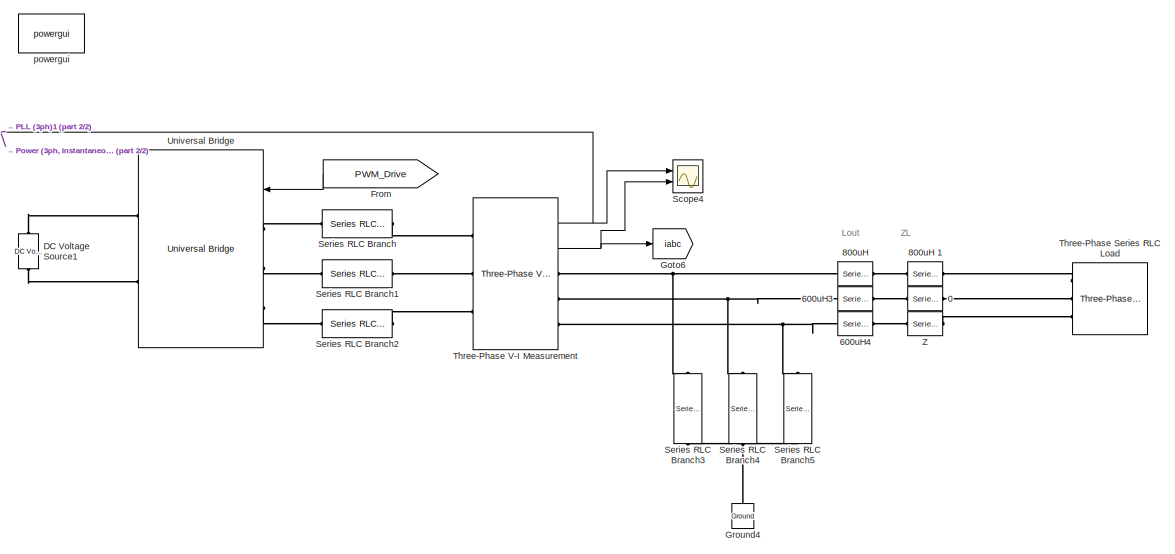
[diagram: root canvas - part 1/2, full width, top band]
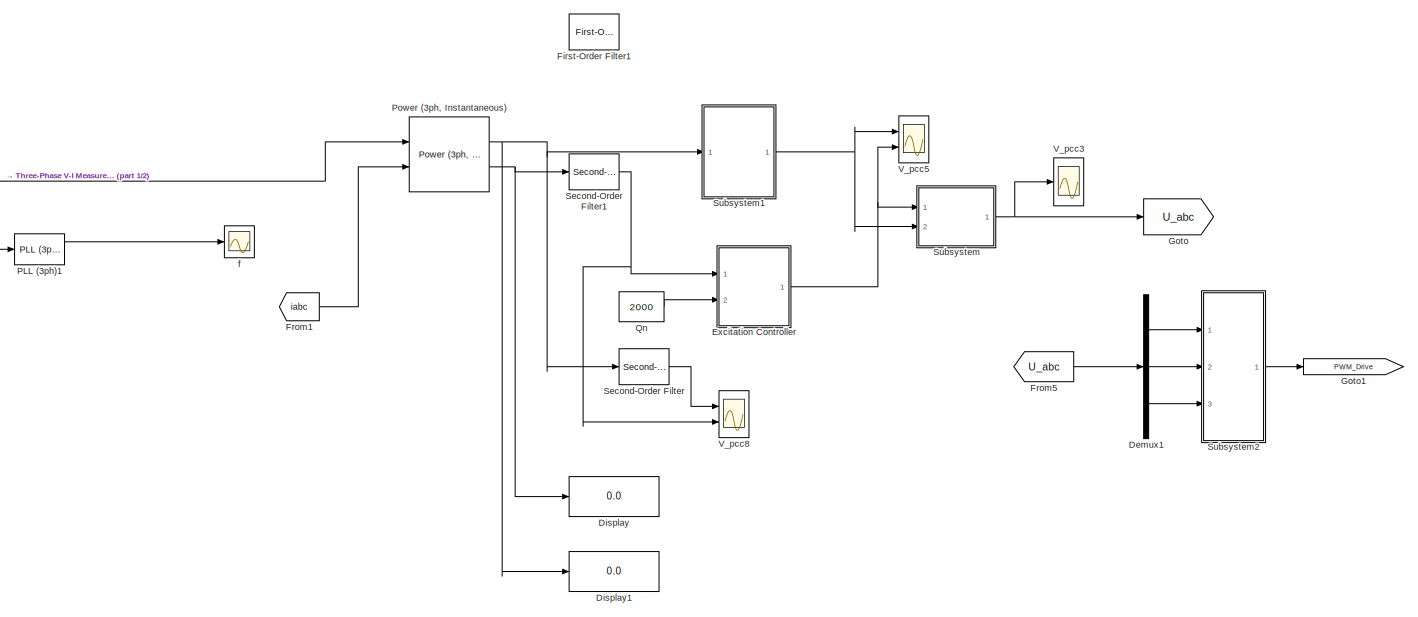
[diagram: root canvas - part 2/2, full width, bottom band]
MODEL slx_7855876d6123
KIND model
CONFIG AbsTol = auto
CONFIG FixedStep = auto
CONFIG InitFcn = fs=1/10e3;\ngTs=1/10e3;\n
CONFIG MaxStep = 1e-4
CONFIG MinStep = 1e-7
CONFIG RelTol = 1e-7
CONFIG SampleTimeConstraint = Unconstrained
CONFIG Solver = ode23tb
CONFIG SolverMode = Auto
CONFIG SolverName = ode23tb
CONFIG StartTime = 0.0
CONFIG StopTime = 2
BLOCK [Reference] 0  REF=powerlib/Elements/Series RLC Branch
  BranchType = R
  Capacitance = []
  Inductance = 6e-3
  InitialCurrent = 0
  InitialVoltage = 0
  LConnTagsString = __new0
  Measurements = None
  Ports = [0, 0, 0, 0, 0, 1, 1]
  RConnTagsString = __new0
  Resistance = 0.077+0.017i
  SetiL0 = off
  Setx0 = off
  SourceBlock = powerlib/Elements/Series RLC Branch
  SourceType = Series RLC Branch
BLOCK [Reference] 600uH3  REF=powerlib/Elements/Series RLC Branch
  BranchType = L
  Capacitance = []
  Inductance = 6e-3
  InitialCurrent = 0
  InitialVoltage = 0
  LConnTagsString = __new0
  Measurements = None
  Ports = [0, 0, 0, 0, 0, 1, 1]
  RConnTagsString = __new0
  Resistance = 0.001
  SetiL0 = off
  Setx0 = off
  SourceBlock = powerlib/Elements/Series RLC Branch
  SourceType = Series RLC Branch
BLOCK [Reference] 600uH4  REF=powerlib/Elements/Series RLC Branch
  BranchType = L
  Capacitance = []
  Inductance = 6e-3
  InitialCurrent = 0
  InitialVoltage = 0
  LConnTagsString = __new0
  Measurements = None
  Ports = [0, 0, 0, 0, 0, 1, 1]
  RConnTagsString = __new0
  Resistance = 0.001
  SetiL0 = off
  Setx0 = off
  SourceBlock = powerlib/Elements/Series RLC Branch
  SourceType = Series RLC Branch
BLOCK [Reference] 800uH   REF=powerlib/Elements/Series RLC Branch
  BranchType = L
  Capacitance = []
  Inductance = 6e-3
  InitialCurrent = 0
  InitialVoltage = 0
  LConnTagsString = __new0
  Measurements = None
  Ports = [0, 0, 0, 0, 0, 1, 1]
  RConnTagsString = __new0
  Resistance = 0.001
  SetiL0 = off
  Setx0 = off
  SourceBlock = powerlib/Elements/Series RLC Branch
  SourceType = Series RLC Branch
BLOCK [Reference] 800uH 1  REF=powerlib/Elements/Series RLC Branch
  BranchType = R
  Capacitance = []
  Inductance = 6e-3
  InitialCurrent = 0
  InitialVoltage = 0
  LConnTagsString = __new0
  Measurements = None
  Ports = [0, 0, 0, 0, 0, 1, 1]
  RConnTagsString = __new0
  Resistance = 0.077+0.017i
  SetiL0 = off
  Setx0 = off
  SourceBlock = powerlib/Elements/Series RLC Branch
  SourceType = Series RLC Branch
BLOCK [Reference] DC Voltage Source1  REF=powerlib/Electrical
Sources/DC Voltage Source
  Amplitude = 1000
  Measurements = None
  Ports = [0, 0, 0, 0, 0, 1, 1]
  SourceBlock = powerlib/Electrical\nSources/DC Voltage Source
  SourceType = DC Voltage Source
BLOCK [Demux] Demux1
  DisplayOption = bar
  Outputs = 3
  Ports = [1, 3]
BLOCK [Display] Display
  Decimation = 1
  Ports = [1]
BLOCK [Display] Display1
  Decimation = 1
  Ports = [1]
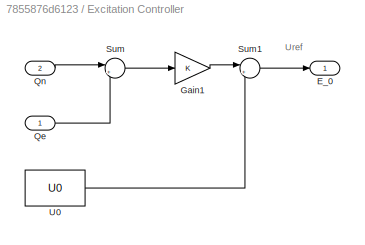
BLOCK [SubSystem] Excitation Controller
  Ports = [2, 1]
  RequestExecContextInheritance = off
BLOCK [Outport] Excitation Controller/E_0
  IconDisplay = Port number
BLOCK [Gain] Excitation Controller/Gain1
  Gain = K
BLOCK [Inport] Excitation Controller/Qe
  IconDisplay = Port number
BLOCK [Inport] Excitation Controller/Qn
  IconDisplay = Port number
  Port = 2
BLOCK [Sum] Excitation Controller/Sum
  IconShape = round
  InputSameDT = off
  Inputs = |+-
  OutDataTypeStr = Inherit: Inherit via internal rule
  Ports = [2, 1]
  SaturateOnIntegerOverflow = off
BLOCK [Sum] Excitation Controller/Sum1
  IconShape = round
  InputSameDT = off
  Inputs = |++
  OutDataTypeStr = Inherit: Inherit via internal rule
  Ports = [2, 1]
  SaturateOnIntegerOverflow = off
BLOCK [Constant] Excitation Controller/U0
  Value = U0
  VectorParams1D = off
BLOCK [Reference] First-Order Filter1  REF=powerlib_meascontrol/Filters/First-Order
Filter
  Commented = on
  FilterType = Lowpass
  FreqRange = [0,  200,  1]
  Initialize = on
  PlotResponse = off
  Ports = [1, 1]
  SourceBlock = powerlib_meascontrol/Filters/First-Order\nFilter
  SourceType = First-Order Filter
  Tc = 10e-3
  Ts = 0
  Vac_Init = [0, 0, 52]
  Vdc_Init = 0
BLOCK [From] From
  GotoTag = PWM_Drive
BLOCK [From] From1
  GotoTag = iabc
BLOCK [From] From5
  GotoTag = U_abc
BLOCK [Goto] Goto
  GotoTag = U_abc
BLOCK [Goto] Goto1
  GotoTag = PWM_Drive
BLOCK [Goto] Goto6
  GotoTag = iabc
BLOCK [Reference] Ground4  REF=powerlib/Elements/Ground
  LConnTagsString = a
  Ports = [0, 0, 0, 0, 0, 1]
  SourceBlock = powerlib/Elements/Ground
  SourceType = Ground
BLOCK [Reference] PLL (3ph)1  REF=powerlib_meascontrol/PLL/PLL
(3ph)
  AGC = on
  FilterCutOffFreq = 25
  Fmin = 45
  MaxRateChangeFreq = 12
  ParK = [180, 3200, 1]
  Par_Init = [0, 50]
  Ports = [1, 2]
  SourceBlock = powerlib_meascontrol/PLL/PLL\n(3ph)
  SourceType = PLL (3ph)
  TcD = 1e-4
  Ts = 0
BLOCK [Reference] Power (3ph, Instantaneous)  REF=powerlib_meascontrol/Measurements/Power
(3ph, Instantaneous)
  Ports = [2, 2]
  SourceBlock = powerlib_meascontrol/Measurements/Power\n(3ph, Instantaneous)
  SourceType = Power (3ph, Instantaneous)
BLOCK [Constant] Qn
  Value = 2000
BLOCK [Scope] Scope4
  DataFormat = StructureWithTime
  Floating = off
  LimitDataPoints = off
  NumInputPorts = 2
  Ports = [2]
  SampleTime = 0
  SaveName = ScopeData8
  YMax = 550~125
  YMin = -550~-150
  ZoomMode = xonly
BLOCK [Reference] Second-Order Filter  REF=powerlib_meascontrol/Filters/Second-Order
Filter
  FilterType = Lowpass
  Fo = 20
  FreqRange = [0, 500, 1]
  Initialize = off
  PlotResponse = off
  Ports = [1, 1]
  SourceBlock = powerlib_meascontrol/Filters/Second-Order\nFilter
  SourceType = Second-Order Filter
  Ts = 0
  Vac_Init = [0,  0,  60]
  Vdc_Init = 0
  Zeta = 0.707
BLOCK [Reference] Second-Order Filter1  REF=powerlib_meascontrol/Filters/Second-Order
Filter
  FilterType = Lowpass
  Fo = 20
  FreqRange = [0, 500, 1]
  Initialize = off
  PlotResponse = off
  Ports = [1, 1]
  SourceBlock = powerlib_meascontrol/Filters/Second-Order\nFilter
  SourceType = Second-Order Filter
  Ts = 0
  Vac_Init = [0,  0,  60]
  Vdc_Init = 0
  Zeta = 0.707
BLOCK [Reference] Series RLC Branch  REF=powerlib/Elements/Series RLC Branch
  BranchType = RL
  Capacitance = 1e-6
  Inductance = 2e-3
  InitialCurrent = 0
  InitialVoltage = 0
  LConnTagsString = __new0
  Measurements = None
  Ports = [0, 0, 0, 0, 0, 1, 1]
  RConnTagsString = __new0
  Resistance = 0.1
  SetiL0 = off
  Setx0 = off
  SourceBlock = powerlib/Elements/Series RLC Branch
  SourceType = Series RLC Branch
BLOCK [Reference] Series RLC Branch1  REF=powerlib/Elements/Series RLC Branch
  BranchType = RL
  Capacitance = 1e-6
  Inductance = 2e-3
  InitialCurrent = 0
  InitialVoltage = 0
  LConnTagsString = __new0
  Measurements = None
  Ports = [0, 0, 0, 0, 0, 1, 1]
  RConnTagsString = __new0
  Resistance = 0.1
  SetiL0 = off
  Setx0 = off
  SourceBlock = powerlib/Elements/Series RLC Branch
  SourceType = Series RLC Branch
BLOCK [Reference] Series RLC Branch2  REF=powerlib/Elements/Series RLC Branch
  BranchType = RL
  Capacitance = 1e-6
  Inductance = 2e-3
  InitialCurrent = 0
  InitialVoltage = 0
  LConnTagsString = __new0
  Measurements = None
  Ports = [0, 0, 0, 0, 0, 1, 1]
  RConnTagsString = __new0
  Resistance = 0.1
  SetiL0 = off
  Setx0 = off
  SourceBlock = powerlib/Elements/Series RLC Branch
  SourceType = Series RLC Branch
BLOCK [Reference] Series RLC Branch3  REF=powerlib/Elements/Series RLC Branch
  BranchType = RC
  Capacitance = 40e-6
  Inductance = 1e-3
  InitialCurrent = 0
  InitialVoltage = 0
  LConnTagsString = __new0
  Measurements = None
  Ports = [0, 0, 0, 0, 0, 1, 1]
  RConnTagsString = __new0
  Resistance = 4
  SetiL0 = off
  Setx0 = off
  SourceBlock = powerlib/Elements/Series RLC Branch
  SourceType = Series RLC Branch
BLOCK [Reference] Series RLC Branch4  REF=powerlib/Elements/Series RLC Branch
  BranchType = RC
  Capacitance = 40e-6
  Inductance = 1e-3
  InitialCurrent = 0
  InitialVoltage = 0
  LConnTagsString = __new0
  Measurements = None
  Ports = [0, 0, 0, 0, 0, 1, 1]
  RConnTagsString = __new0
  Resistance = 4
  SetiL0 = off
  Setx0 = off
  SourceBlock = powerlib/Elements/Series RLC Branch
  SourceType = Series RLC Branch
BLOCK [Reference] Series RLC Branch5  REF=powerlib/Elements/Series RLC Branch
  BranchType = RC
  Capacitance = 40e-6
  Inductance = 1e-3
  InitialCurrent = 0
  InitialVoltage = 0
  LConnTagsString = __new0
  Measurements = None
  Ports = [0, 0, 0, 0, 0, 1, 1]
  RConnTagsString = __new0
  Resistance = 4
  SetiL0 = off
  Setx0 = off
  SourceBlock = powerlib/Elements/Series RLC Branch
  SourceType = Series RLC Branch
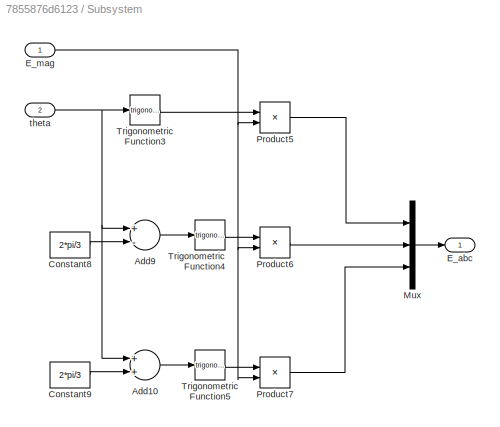
BLOCK [SubSystem] Subsystem
  Ports = [2, 1]
  RequestExecContextInheritance = off
BLOCK [Sum] Subsystem/Add10
  InputSameDT = off
  OutDataTypeStr = Inherit: Inherit via internal rule
  Ports = [2, 1]
  SaturateOnIntegerOverflow = off
BLOCK [Sum] Subsystem/Add9
  InputSameDT = off
  Inputs = +-
  OutDataTypeStr = Inherit: Inherit via internal rule
  Ports = [2, 1]
  SaturateOnIntegerOverflow = off
BLOCK [Constant] Subsystem/Constant8
  Value = 2*pi/3
BLOCK [Constant] Subsystem/Constant9
  Value = 2*pi/3
BLOCK [Outport] Subsystem/E_abc
  IconDisplay = Port number
BLOCK [Inport] Subsystem/E_mag
  IconDisplay = Port number
BLOCK [Mux] Subsystem/Mux
  DisplayOption = bar
  Inputs = 3
  Ports = [3, 1]
BLOCK [Product] Subsystem/Product5
  InputSameDT = off
  OutDataTypeStr = Inherit: Inherit via internal rule
  Ports = [2, 1]
  RndMeth = Floor
  SaturateOnIntegerOverflow = off
BLOCK [Product] Subsystem/Product6
  InputSameDT = off
  OutDataTypeStr = Inherit: Inherit via internal rule
  Ports = [2, 1]
  RndMeth = Floor
  SaturateOnIntegerOverflow = off
BLOCK [Product] Subsystem/Product7
  InputSameDT = off
  OutDataTypeStr = Inherit: Inherit via internal rule
  Ports = [2, 1]
  RndMeth = Floor
  SaturateOnIntegerOverflow = off
BLOCK [Trigonometry] Subsystem/Trigonometric Function3
  Ports = [1, 1]
BLOCK [Trigonometry] Subsystem/Trigonometric Function4
  Ports = [1, 1]
BLOCK [Trigonometry] Subsystem/Trigonometric Function5
  Ports = [1, 1]
BLOCK [Inport] Subsystem/theta
  IconDisplay = Port number
  Port = 2
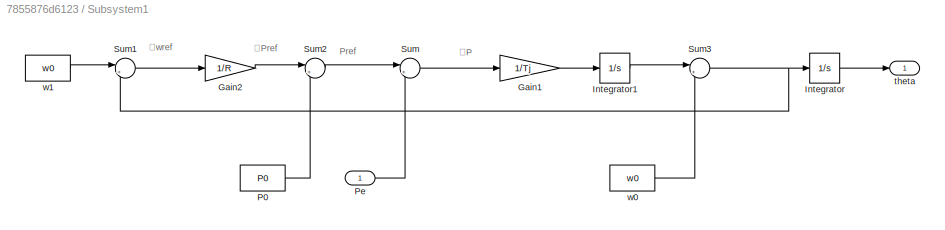
BLOCK [SubSystem] Subsystem1
  Ports = [1, 1]
  RequestExecContextInheritance = off
BLOCK [Gain] Subsystem1/Gain1
  Gain = 1/Tj
BLOCK [Gain] Subsystem1/Gain2
  Gain = 1/R
BLOCK [Integrator] Subsystem1/Integrator
  Ports = [1, 1]
BLOCK [Integrator] Subsystem1/Integrator1
  Ports = [1, 1]
BLOCK [Constant] Subsystem1/P0
  Value = P0
  VectorParams1D = off
BLOCK [Inport] Subsystem1/Pe
  IconDisplay = Port number
BLOCK [Sum] Subsystem1/Sum
  IconShape = round
  InputSameDT = off
  Inputs = |+-
  OutDataTypeStr = Inherit: Inherit via internal rule
  Ports = [2, 1]
  SaturateOnIntegerOverflow = off
BLOCK [Sum] Subsystem1/Sum1
  IconShape = round
  InputSameDT = off
  Inputs = |+-
  OutDataTypeStr = Inherit: Inherit via internal rule
  Ports = [2, 1]
  SaturateOnIntegerOverflow = off
BLOCK [Sum] Subsystem1/Sum2
  IconShape = round
  InputSameDT = off
  Inputs = |++
  OutDataTypeStr = Inherit: Inherit via internal rule
  Ports = [2, 1]
  SaturateOnIntegerOverflow = off
BLOCK [Sum] Subsystem1/Sum3
  IconShape = round
  InputSameDT = off
  Inputs = |++
  OutDataTypeStr = Inherit: Inherit via internal rule
  Ports = [2, 1]
  SaturateOnIntegerOverflow = off
BLOCK [Outport] Subsystem1/theta
  IconDisplay = Port number
BLOCK [Constant] Subsystem1/w0
  Value = w0
  VectorParams1D = off
BLOCK [Constant] Subsystem1/w1
  Value = w0
  VectorParams1D = off
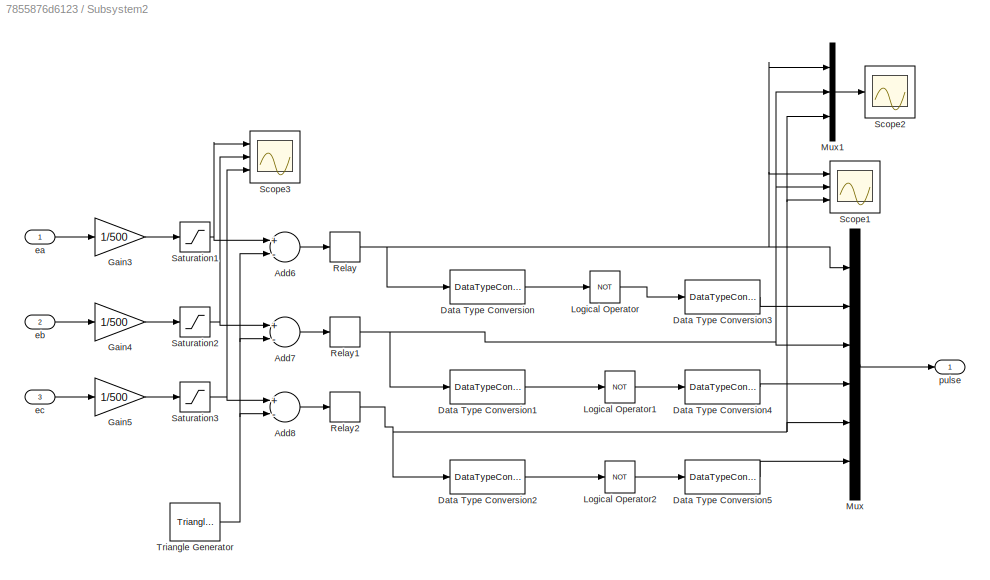
BLOCK [SubSystem] Subsystem2
  Ports = [3, 1]
  RequestExecContextInheritance = off
BLOCK [Sum] Subsystem2/Add6
  InputSameDT = off
  Inputs = +-
  OutDataTypeStr = Inherit: Inherit via internal rule
  Ports = [2, 1]
  SaturateOnIntegerOverflow = off
BLOCK [Sum] Subsystem2/Add7
  InputSameDT = off
  Inputs = +-
  OutDataTypeStr = Inherit: Inherit via internal rule
  Ports = [2, 1]
  SaturateOnIntegerOverflow = off
BLOCK [Sum] Subsystem2/Add8
  InputSameDT = off
  Inputs = +-
  OutDataTypeStr = Inherit: Inherit via internal rule
  Ports = [2, 1]
  SaturateOnIntegerOverflow = off
BLOCK [DataTypeConversion] Subsystem2/Data Type Conversion
  OutDataTypeStr = boolean
  RndMeth = Floor
  SaturateOnIntegerOverflow = off
BLOCK [DataTypeConversion] Subsystem2/Data Type Conversion1
  OutDataTypeStr = boolean
  RndMeth = Floor
  SaturateOnIntegerOverflow = off
BLOCK [DataTypeConversion] Subsystem2/Data Type Conversion2
  OutDataTypeStr = boolean
  RndMeth = Floor
  SaturateOnIntegerOverflow = off
BLOCK [DataTypeConversion] Subsystem2/Data Type Conversion3
  OutDataTypeStr = double
  RndMeth = Floor
  SaturateOnIntegerOverflow = off
BLOCK [DataTypeConversion] Subsystem2/Data Type Conversion4
  OutDataTypeStr = double
  RndMeth = Floor
  SaturateOnIntegerOverflow = off
BLOCK [DataTypeConversion] Subsystem2/Data Type Conversion5
  OutDataTypeStr = double
  RndMeth = Floor
  SaturateOnIntegerOverflow = off
BLOCK [Gain] Subsystem2/Gain3
  Gain = 1/500
  OutDataTypeStr = Inherit: Inherit via internal rule
  ParamDataTypeStr = Inherit: Inherit via internal rule
  SaturateOnIntegerOverflow = off
BLOCK [Gain] Subsystem2/Gain4
  Gain = 1/500
  OutDataTypeStr = Inherit: Inherit via internal rule
  ParamDataTypeStr = Inherit: Inherit via internal rule
  SaturateOnIntegerOverflow = off
BLOCK [Gain] Subsystem2/Gain5
  Gain = 1/500
  OutDataTypeStr = Inherit: Inherit via internal rule
  ParamDataTypeStr = Inherit: Inherit via internal rule
  SaturateOnIntegerOverflow = off
BLOCK [Logic] Subsystem2/Logical Operator
  AllPortsSameDT = off
  Operator = NOT
  OutDataTypeStr = boolean
  Ports = [1, 1]
BLOCK [Logic] Subsystem2/Logical Operator1
  AllPortsSameDT = off
  Operator = NOT
  OutDataTypeStr = boolean
  Ports = [1, 1]
BLOCK [Logic] Subsystem2/Logical Operator2
  AllPortsSameDT = off
  Operator = NOT
  OutDataTypeStr = boolean
  Ports = [1, 1]
BLOCK [Mux] Subsystem2/Mux
  DisplayOption = bar
  Inputs = 6
  Ports = [6, 1]
BLOCK [Mux] Subsystem2/Mux1
  DisplayOption = bar
  Inputs = 3
  Ports = [3, 1]
BLOCK [Relay] Subsystem2/Relay
  InputProcessing = Elements as channels (sample based)
  OffSwitchValue = -eps
BLOCK [Relay] Subsystem2/Relay1
  InputProcessing = Elements as channels (sample based)
  OffSwitchValue = -eps
BLOCK [Relay] Subsystem2/Relay2
  InputProcessing = Elements as channels (sample based)
  OffSwitchValue = -eps
BLOCK [Saturate] Subsystem2/Saturation1
  InputPortMap = u0
  LowerLimit = -1
  Ports = [1, 1]
  UpperLimit = 1
BLOCK [Saturate] Subsystem2/Saturation2
  InputPortMap = u0
  LowerLimit = -1
  Ports = [1, 1]
  UpperLimit = 1
BLOCK [Saturate] Subsystem2/Saturation3
  InputPortMap = u0
  LowerLimit = -1
  Ports = [1, 1]
  UpperLimit = 1
BLOCK [Scope] Subsystem2/Scope1
  DataFormat = StructureWithTime
  Floating = off
  LimitDataPoints = off
  NumInputPorts = 3
  Ports = [3]
  SampleTime = 0
  SaveName = ScopeData3
  YMax = 1.5~1.5~1.5
  YMin = -1.5~-1.5~-1.5
  ZoomMode = xonly
BLOCK [Scope] Subsystem2/Scope2
  DataFormat = StructureWithTime
  Floating = off
  LimitDataPoints = off
  NumInputPorts = 1
  Ports = [1]
  SampleTime = 0
  SaveName = ScopeData4
  YMax = 1.5
  YMin = -1.5
  ZoomMode = xonly
BLOCK [Scope] Subsystem2/Scope3
  DataFormat = StructureWithTime
  Floating = off
  LimitDataPoints = off
  NumInputPorts = 3
  Ports = [3]
  SampleTime = 0
  SaveName = ScopeData5
  YMax = 1.5~1.5~1.5
  YMin = -1.5~-1.5~-1.5
  ZoomMode = xonly
BLOCK [Reference] Subsystem2/Triangle Generator  REF=powerlib_meascontrol/Pulse & Signal
Generators/Triangle
Generator
  Freq = 6000
  Phase = 0
  Ports = [0, 1]
  SourceBlock = powerlib_meascontrol/Pulse & Signal\nGenerators/Triangle\nGenerator
  SourceType = Triangle Generator
  Ts = 0
BLOCK [Inport] Subsystem2/ea
  IconDisplay = Port number
BLOCK [Inport] Subsystem2/eb
  IconDisplay = Port number
  Port = 2
BLOCK [Inport] Subsystem2/ec
  IconDisplay = Port number
  Port = 3
BLOCK [Outport] Subsystem2/pulse
  IconDisplay = Port number
BLOCK [Reference] Three-Phase Series RLC Load  REF=powerlib/Elements/Three-Phase
Series RLC Load
  ActivePower = 17500
  AttributesFormatString = \n
  CapacitivePower = 0
  Configuration = Y (grounded)
  InductivePower = 8000
  LConnTagsString = A|B|C
  LoadType = constant Z
  Measurements = Branch voltages and currents
  NominalFrequency = 50
  NominalVoltage = 380
  Ports = [0, 0, 0, 0, 0, 3]
  SourceBlock = powerlib/Elements/Three-Phase\nSeries RLC Load
  SourceType = Three-Phase Series RLC Load
BLOCK [Reference] Three-Phase V-I Measurement  REF=powerlib/Measurements/Three-Phase
V-I Measurement
  CurrentMeasurement = yes
  Ipu = off
  LabelI = Iabc
  LabelV = Vabc
  OutputType = Complex
  PSBequivalent = 0
  Pbase = 100e6
  PhasorSimulation = off
  Ports = [0, 2, 0, 0, 0, 3, 3]
  SetLabelI = off
  SetLabelV = off
  SourceBlock = powerlib/Measurements/Three-Phase\nV-I Measurement
  SourceType = Three-Phase VI Measurement
  Vbase = 500e3
  VoltageMeasurement = phase-to-ground
  Vpu = off
  VpuLL = off
BLOCK [Reference] Universal Bridge  REF=powerlib/Power
Electronics/Universal Bridge
  Arms = 3
  Device = IGBT / Diodes
  ForwardVoltage = 0
  ForwardVoltages = [  0  0  ]
  GTOparameters = [ 10e-6 , 20e-6 ]
  IGBTparameters = [ 1e-6 , 2e-6 ]
  Lon = 0
  Measurements = None
  Measurements_2 = None
  Ports = [1, 0, 0, 0, 0, 3, 2]
  Ron = 1e-3
  SnubberCapacitance = inf
  SnubberResistance = 1e5
  SourceBlock = powerlib/Power\nElectronics/Universal Bridge
  SourceType = Universal Bridge
  converterType = Rectifier
BLOCK [Scope] V_pcc3
  DataFormat = StructureWithTime
  Floating = off
  LimitDataPoints = off
  NumInputPorts = 1
  Ports = [1]
  TimeRange = 0.06000000000000001
  YMax = 300
  YMin = -350
  ZoomMode = xonly
BLOCK [Scope] V_pcc5
  DataFormat = StructureWithTime
  Floating = off
  LimitDataPoints = off
  NumInputPorts = 2
  Ports = [2]
  SaveName = ScopeData7
  TimeRange = 2
  YMax = 126.5~312.291
  YMin = 120~312.291
BLOCK [Scope] V_pcc8
  DataFormat = StructureWithTime
  Floating = off
  LimitDataPoints = off
  NumInputPorts = 2
  Ports = [2]
  SaveName = ScopeData9
  YMax = 13050~7350
  YMin = 12600~6875
  ZoomMode = yonly
BLOCK [Reference] Z  REF=powerlib/Elements/Series RLC Branch
  BranchType = R
  Capacitance = []
  Inductance = 6e-3
  InitialCurrent = 0
  InitialVoltage = 0
  LConnTagsString = __new0
  Measurements = None
  Ports = [0, 0, 0, 0, 0, 1, 1]
  RConnTagsString = __new0
  Resistance = 0.077+0.017i
  SetiL0 = off
  Setx0 = off
  SourceBlock = powerlib/Elements/Series RLC Branch
  SourceType = Series RLC Branch
BLOCK [Scope] f
  Floating = off
  LimitDataPoints = off
  NumInputPorts = 1
  Ports = [1]
  SaveName = ScopeData10
  YMax = 50.272
  YMin = 50.259
BLOCK [Reference] powergui  REF=powerlib/powergui
  DisableRonSwitches = off
  DisableSnubberDevices = off
  DisableVfSwitches = off
  DisplayEquations = off
  DisplayStyle = 1
  EnableUseOfTLC = off
  ErrMax = 1e-4
  Frange = [0:2:500]
  FreqAxis = off
  FunctionMessages = off
  HookPort = off
  Interpol = off
  Iterations = 50
  MaxFrequency = 1000
  Pbase = 100e6
  Ports = []
  Priority = 1
  ResistiveCurrentMeasurement = off
  RestoreLinks = warning
  RmsSteady = 1
  SPID = on
  SampleTime = 5e-6
  ShowGrid = off
  SolverType = Tustin
  SourceBlock = powerlib/powergui
  SourceType = PSB option menu block
  StartTime = 0.0
  SwTol = 0
  Ts = 0
  UnitsV = kV
  UnitsW = MW
  UserDataPersistent = on
  Xlog = on
  Ylog = off
  ZoomFFT = off
  buscounter = 0
  cycles = 1
  display = off
  echomessages = off
  frequency = 60
  frequencyindice = 0
  frequencyindicesteady = 1
  fundamental = 60
  methode = off
  save = off
  structure = 0
  variable = ZData
  x0status = blocks
ANNOTATION (root): Lout
ANNOTATION (root): ZL
ANNOTATION Excitation Controller: Uref
ANNOTATION Subsystem1: Pref
ANNOTATION Subsystem1: △P
ANNOTATION Subsystem1: △Pref
ANNOTATION Subsystem1: △wref
LINE Demux1:1 -> Subsystem2:1
LINE Demux1:2 -> Subsystem2:2
LINE Demux1:3 -> Subsystem2:3
LINE Excitation Controller/Gain1:1 -> Excitation Controller/Sum1:1
LINE Excitation Controller/Qe:1 -> Excitation Controller/Sum:2
LINE Excitation Controller/Qn:1 -> Excitation Controller/Sum:1
LINE Excitation Controller/Sum1:1 -> Excitation Controller/E_0:1
LINE Excitation Controller/Sum:1 -> Excitation Controller/Gain1:1
LINE Excitation Controller/U0:1 -> Excitation Controller/Sum1:2
NET Excitation Controller:1 -> Subsystem:1, V_pcc5:2
LINE From1:1 -> Power (3ph, Instantaneous):2
LINE From5:1 -> Demux1:1
LINE From:1 -> Universal Bridge:1
LINE PLL (3ph)1:1 -> f:1
NET Power (3ph, Instantaneous):1 -> Display1:1, Second-Order Filter:1, Subsystem1:1
NET Power (3ph, Instantaneous):2 -> Display:1, Second-Order Filter1:1
LINE Qn:1 -> Excitation Controller:2
NET Second-Order Filter1:1 -> Excitation Controller:1, V_pcc8:2
LINE Second-Order Filter:1 -> V_pcc8:1
LINE Subsystem/Add10:1 -> Subsystem/Trigonometric Function5:1
LINE Subsystem/Add9:1 -> Subsystem/Trigonometric Function4:1
LINE Subsystem/Constant8:1 -> Subsystem/Add9:2
LINE Subsystem/Constant9:1 -> Subsystem/Add10:2
NET Subsystem/E_mag:1 -> Subsystem/Product5:2, Subsystem/Product6:2, Subsystem/Product7:2
LINE Subsystem/Mux:1 -> Subsystem/E_abc:1
LINE Subsystem/Product5:1 -> Subsystem/Mux:1
LINE Subsystem/Product6:1 -> Subsystem/Mux:2
LINE Subsystem/Product7:1 -> Subsystem/Mux:3
LINE Subsystem/Trigonometric Function3:1 -> Subsystem/Product5:1
LINE Subsystem/Trigonometric Function4:1 -> Subsystem/Product6:1
LINE Subsystem/Trigonometric Function5:1 -> Subsystem/Product7:1
NET Subsystem/theta:1 -> Subsystem/Add10:1, Subsystem/Add9:1, Subsystem/Trigonometric Function3:1
LINE Subsystem1/Gain1:1 -> Subsystem1/Integrator1:1
LINE Subsystem1/Gain2:1 -> Subsystem1/Sum2:1
LINE Subsystem1/Integrator1:1 -> Subsystem1/Sum3:1
LINE Subsystem1/Integrator:1 -> Subsystem1/theta:1
LINE Subsystem1/P0:1 -> Subsystem1/Sum2:2
LINE Subsystem1/Pe:1 -> Subsystem1/Sum:2
LINE Subsystem1/Sum1:1 -> Subsystem1/Gain2:1
LINE Subsystem1/Sum2:1 -> Subsystem1/Sum:1
NET Subsystem1/Sum3:1 -> Subsystem1/Integrator:1, Subsystem1/Sum1:2
LINE Subsystem1/Sum:1 -> Subsystem1/Gain1:1
LINE Subsystem1/w0:1 -> Subsystem1/Sum3:2
LINE Subsystem1/w1:1 -> Subsystem1/Sum1:1
NET Subsystem1:1 -> Subsystem:2, V_pcc5:1
LINE Subsystem2/Add6:1 -> Subsystem2/Relay:1
LINE Subsystem2/Add7:1 -> Subsystem2/Relay1:1
LINE Subsystem2/Add8:1 -> Subsystem2/Relay2:1
LINE Subsystem2/Data Type Conversion1:1 -> Subsystem2/Logical Operator1:1
LINE Subsystem2/Data Type Conversion2:1 -> Subsystem2/Logical Operator2:1
LINE Subsystem2/Data Type Conversion3:1 -> Subsystem2/Mux:2
LINE Subsystem2/Data Type Conversion4:1 -> Subsystem2/Mux:4
LINE Subsystem2/Data Type Conversion5:1 -> Subsystem2/Mux:6
LINE Subsystem2/Data Type Conversion:1 -> Subsystem2/Logical Operator:1
LINE Subsystem2/Gain3:1 -> Subsystem2/Saturation1:1
LINE Subsystem2/Gain4:1 -> Subsystem2/Saturation2:1
LINE Subsystem2/Gain5:1 -> Subsystem2/Saturation3:1
LINE Subsystem2/Logical Operator1:1 -> Subsystem2/Data Type Conversion4:1
LINE Subsystem2/Logical Operator2:1 -> Subsystem2/Data Type Conversion5:1
LINE Subsystem2/Logical Operator:1 -> Subsystem2/Data Type Conversion3:1
LINE Subsystem2/Mux1:1 -> Subsystem2/Scope2:1
LINE Subsystem2/Mux:1 -> Subsystem2/pulse:1
NET Subsystem2/Relay1:1 -> Subsystem2/Data Type Conversion1:1, Subsystem2/Mux1:2, Subsystem2/Mux:3, Subsystem2/Scope1:2
NET Subsystem2/Relay2:1 -> Subsystem2/Data Type Conversion2:1, Subsystem2/Mux1:3, Subsystem2/Mux:5, Subsystem2/Scope1:3
NET Subsystem2/Relay:1 -> Subsystem2/Data Type Conversion:1, Subsystem2/Mux1:1, Subsystem2/Mux:1, Subsystem2/Scope1:1
NET Subsystem2/Saturation1:1 -> Subsystem2/Add6:1, Subsystem2/Scope3:1
NET Subsystem2/Saturation2:1 -> Subsystem2/Add7:1, Subsystem2/Scope3:2
NET Subsystem2/Saturation3:1 -> Subsystem2/Add8:1, Subsystem2/Scope3:3
NET Subsystem2/Triangle Generator:1 -> Subsystem2/Add6:2, Subsystem2/Add7:2, Subsystem2/Add8:2
LINE Subsystem2/ea:1 -> Subsystem2/Gain3:1
LINE Subsystem2/eb:1 -> Subsystem2/Gain4:1
LINE Subsystem2/ec:1 -> Subsystem2/Gain5:1
LINE Subsystem2:1 -> Goto1:1
NET Subsystem:1 -> Goto:1, V_pcc3:1
NET Three-Phase V-I Measurement:1 -> PLL (3ph)1:1, Power (3ph, Instantaneous):1, Scope4:1
NET Three-Phase V-I Measurement:2 -> Goto6:1, Scope4:2
PLINE 0:LConn1 -- 600uH3:RConn1
PLINE 0:RConn1 -- Three-Phase Series RLC Load:LConn2
PNET net1: 600uH3:LConn1 -- Series RLC Branch4:RConn1 -- Three-Phase V-I Measurement:RConn2
PNET net2: 600uH4:LConn1 -- Series RLC Branch5:RConn1 -- Three-Phase V-I Measurement:RConn3
PLINE 600uH4:RConn1 -- Z:LConn1
PLINE 800uH 1:LConn1 -- 800uH :RConn1
PLINE 800uH 1:RConn1 -- Three-Phase Series RLC Load:LConn1
PNET net3: 800uH :LConn1 -- Series RLC Branch3:RConn1 -- Three-Phase V-I Measurement:RConn1
PLINE DC Voltage Source1:LConn1 -- Universal Bridge:RConn2
PLINE DC Voltage Source1:RConn1 -- Universal Bridge:RConn1
PNET net4: Ground4:LConn1 -- Series RLC Branch3:LConn1 -- Series RLC Branch4:LConn1 -- Series RLC Branch5:LConn1
PLINE Series RLC Branch1:LConn1 -- Universal Bridge:LConn2
PLINE Series RLC Branch1:RConn1 -- Three-Phase V-I Measurement:LConn2
PLINE Series RLC Branch2:LConn1 -- Universal Bridge:LConn3
PLINE Series RLC Branch2:RConn1 -- Three-Phase V-I Measurement:LConn3
PLINE Series RLC Branch:LConn1 -- Universal Bridge:LConn1
PLINE Series RLC Branch:RConn1 -- Three-Phase V-I Measurement:LConn1
PLINE Three-Phase Series RLC Load:LConn3 -- Z:RConn1
note: NET lines group one-source signal fan-out (src -> all destinations, sorted); 1:1 wires keep LINE; PNET lines group multi-terminal physical nets as a canonical sorted terminal list (undirected conserving connections); 2-terminal nets keep the pairwise PLINE form
